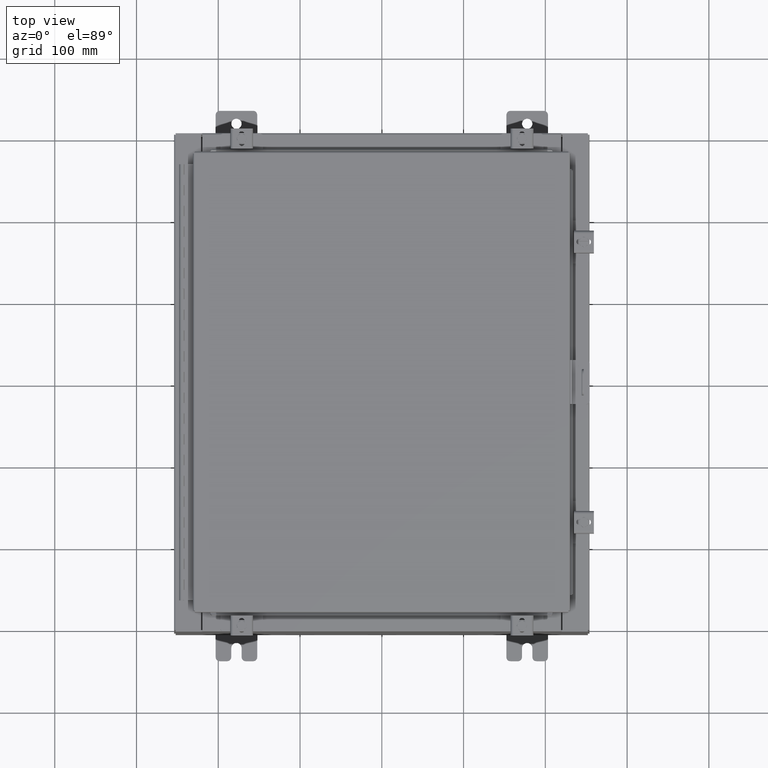
[diagram: clean part render]
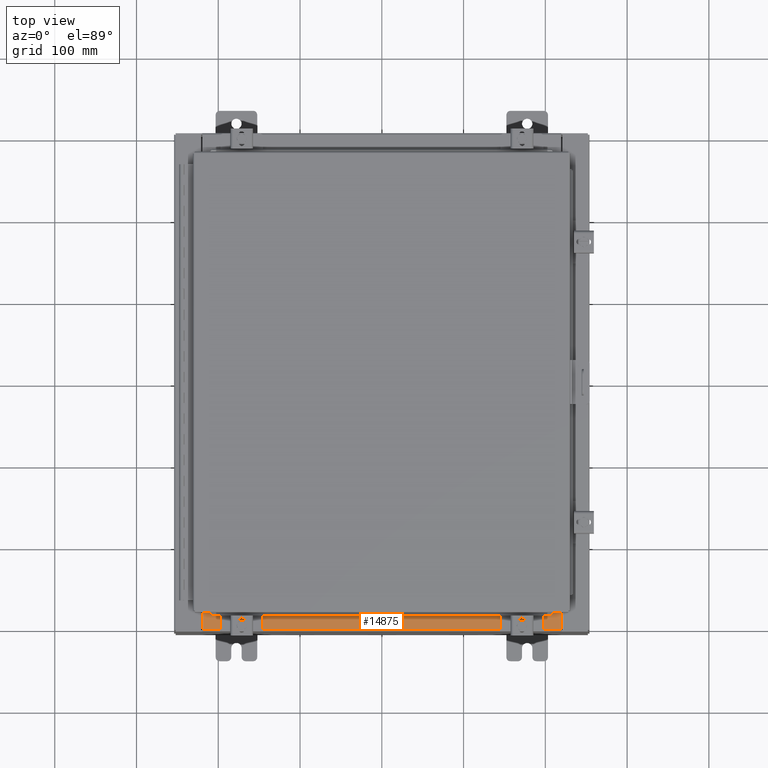
[diagram: same view with one face highlighted and labeled with its STEP entity id]
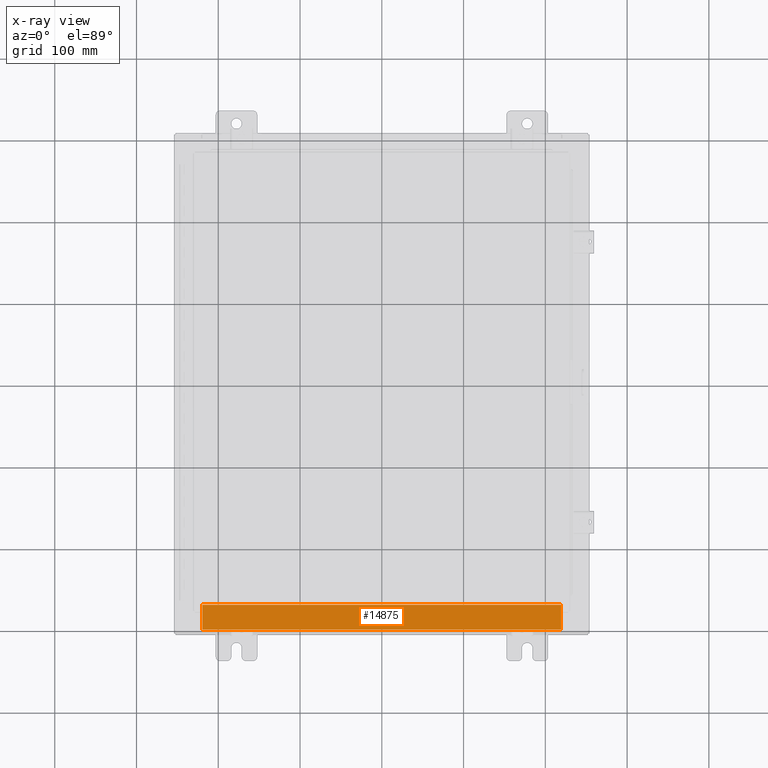
[diagram: x-ray of the same camera — body ghosted, the highlighted face saturated]
A machine part, top view. The second image highlights one B-rep face of the part: STEP entity #14875.
The next image is the same camera in x-ray: the body ghosted, the highlighted face saturated — about 0% of this face is hidden behind the body in this view.
In plain terms, the highlighted planar face has unit normal (-0, -0, 1).
Its self-contained STEP definition (entity closure, byte-faithful):
#633 = LINE ( 'NONE', #22133, #19897 ) ;
#1459 = VERTEX_POINT ( 'NONE', #23068 ) ;
#1526 = ORIENTED_EDGE ( 'NONE', *, *, #18592, .F. ) ;
#1752 = DIRECTION ( 'NONE',  ( 0.0000000000000000000, -1.000000000000000000, 3.566381192773190000E-015 ) ) ;
#2006 = EDGE_LOOP ( 'NONE', ( #1526, #10579, #12998, #23949 ) ) ;
#2016 = DIRECTION ( 'NONE',  ( 0.0000000000000000000, 3.566381192773190000E-015, 1.000000000000000000 ) ) ;
#3421 = LINE ( 'NONE', #10046, #29286 ) ;
#5303 = AXIS2_PLACEMENT_3D ( 'NONE', #14116, #2016, #1752 ) ;
#5643 = CARTESIAN_POINT ( 'NONE',  ( -8.637200000000000000, -1.287299999999999200, 5.000000000000004400 ) ) ;
#6452 = DIRECTION ( 'NONE',  ( -1.000000000000000000, 0.0000000000000000000, 0.0000000000000000000 ) ) ;
#6751 = VECTOR ( 'NONE', #6452, 39.37007874015748100 ) ;
#7159 = EDGE_CURVE ( 'NONE', #24475, #1459, #12639, .T. ) ;
#7639 = DIRECTION ( 'NONE',  ( -0.0000000000000000000, -1.000000000000000000, 3.566381192773190000E-015 ) ) ;
#10046 = CARTESIAN_POINT ( 'NONE',  ( 8.637200000000000000, -1.300299999999999800, 5.000000000000004400 ) ) ;
#10579 = ORIENTED_EDGE ( 'NONE', *, *, #30310, .F. ) ;
#11335 = CARTESIAN_POINT ( 'NONE',  ( 8.637200000000000000, -1.287299999999999900, 5.000000000000004400 ) ) ;
#12639 = LINE ( 'NONE', #15984, #31776 ) ;
#12998 = ORIENTED_EDGE ( 'NONE', *, *, #29625, .F. ) ;
#14116 = CARTESIAN_POINT ( 'NONE',  ( 0.0000000000000000000, 1.782631094477737600E-014, 5.000000000000000000 ) ) ;
#14209 = LINE ( 'NONE', #24044, #6751 ) ;
#14875 = ADVANCED_FACE ( 'NONE', ( #23941 ), #23605, .T. ) ;
#15519 = DIRECTION ( 'NONE',  ( -1.000000000000000000, -6.325772226333218300E-017, 2.256011509776178200E-031 ) ) ;
#15984 = CARTESIAN_POINT ( 'NONE',  ( 5.547702242495411600E-018, -0.08770000000000081900, 5.000000000000000000 ) ) ;
#18592 = EDGE_CURVE ( 'NONE', #22759, #1459, #633, .T. ) ;
#19897 = VECTOR ( 'NONE', #20478, 39.37007874015748100 ) ;
#20478 = DIRECTION ( 'NONE',  ( -0.0000000000000000000, 1.000000000000000000, -3.566381192773190000E-015 ) ) ;
#22133 = CARTESIAN_POINT ( 'NONE',  ( -8.637200000000000000, -0.07469999999999973900, 5.000000000000000000 ) ) ;
#22759 = VERTEX_POINT ( 'NONE', #5643 ) ;
#23068 = CARTESIAN_POINT ( 'NONE',  ( -8.637200000000000000, -0.08770000000000081900, 5.000000000000000000 ) ) ;
#23605 = PLANE ( 'NONE',  #5303 ) ;
#23941 = FACE_OUTER_BOUND ( 'NONE', #2006, .T. ) ;
#23949 = ORIENTED_EDGE ( 'NONE', *, *, #7159, .T. ) ;
#24044 = CARTESIAN_POINT ( 'NONE',  ( 8.637200000000000000, -1.287299999999999900, 5.000000000000003600 ) ) ;
#24193 = VERTEX_POINT ( 'NONE', #11335 ) ;
#24475 = VERTEX_POINT ( 'NONE', #25048 ) ;
#25048 = CARTESIAN_POINT ( 'NONE',  ( 8.637200000000000000, -0.08770000000000047200, 5.000000000000000000 ) ) ;
#29286 = VECTOR ( 'NONE', #7639, 39.37007874015748100 ) ;
#29625 = EDGE_CURVE ( 'NONE', #24475, #24193, #3421, .T. ) ;
#30310 = EDGE_CURVE ( 'NONE', #24193, #22759, #14209, .T. ) ;
#31776 = VECTOR ( 'NONE', #15519, 39.37007874015748100 ) ;